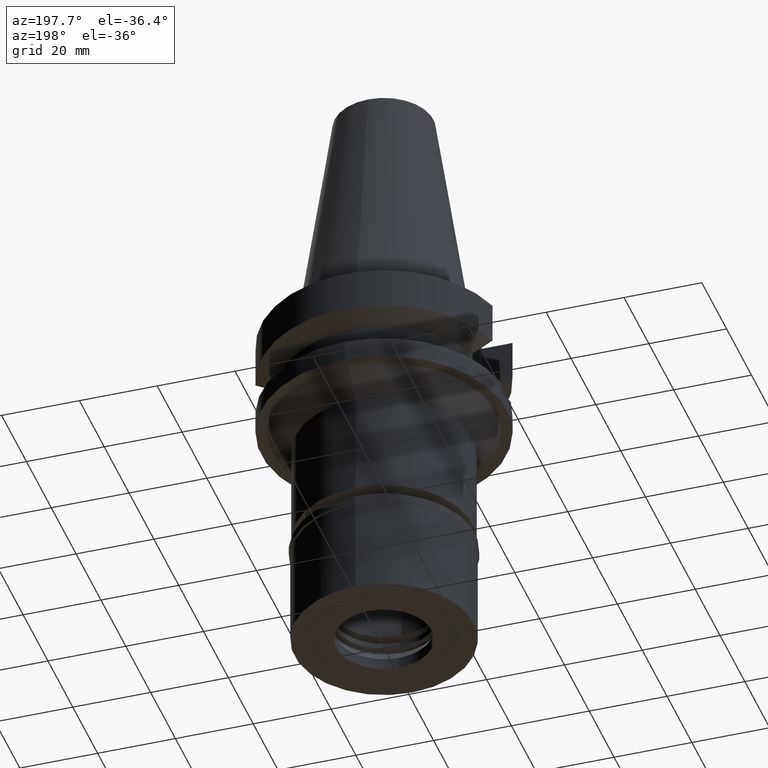
[diagram: clean part render]
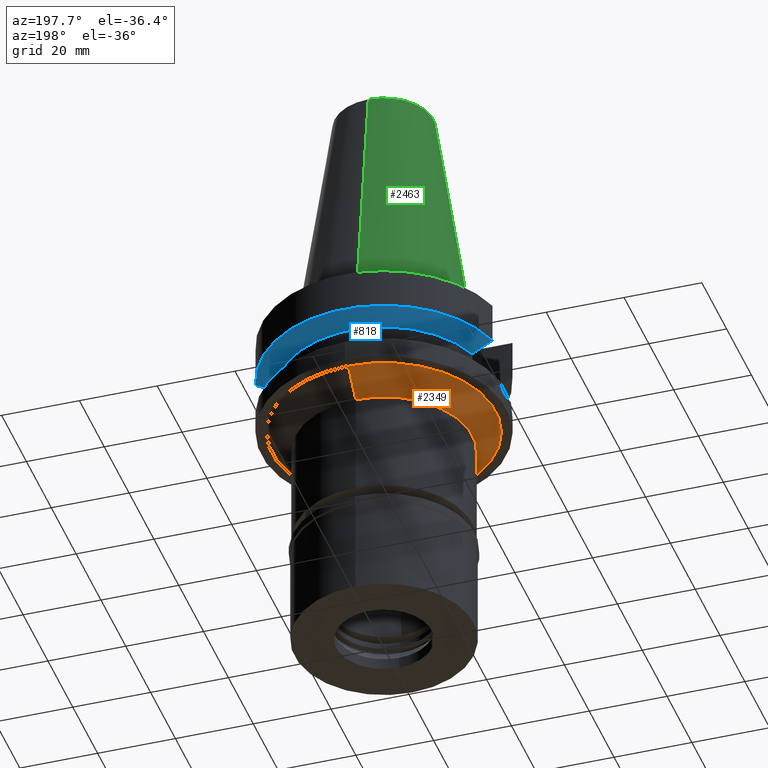
[diagram: same view with three faces highlighted in distinct colors, each labeled with its STEP entity id]
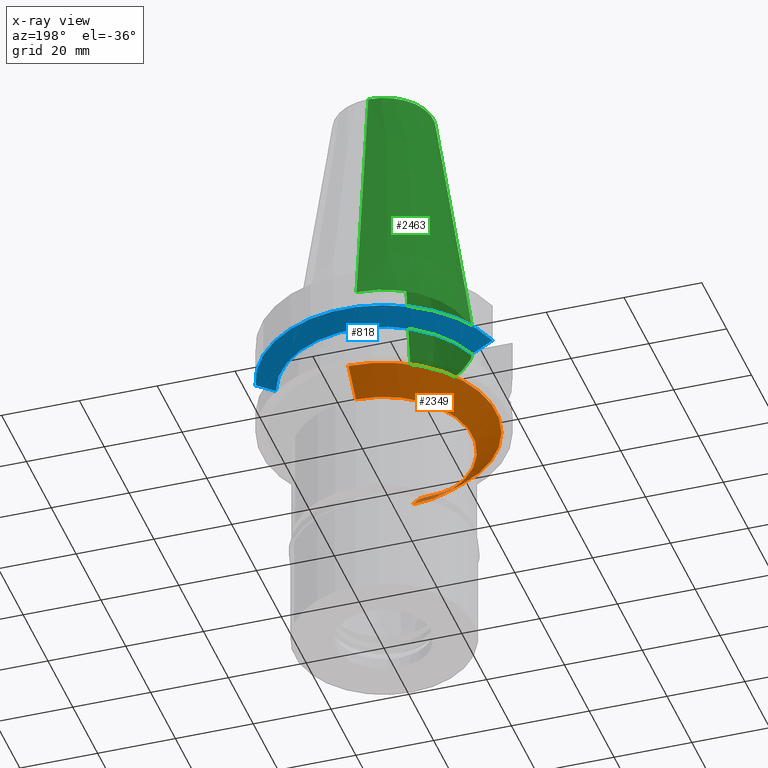
[diagram: x-ray of the same camera — body ghosted, the three highlighted faces saturated]
A machine part, auxiliary view with three faces highlighted in distinct colors.
The next image is the same camera in x-ray (body ghosted, the three faces saturated) — at least one of them is partly hidden behind the body in this view.
Their STEP definitions:

[orange] entity #2349 — the highlighted conical surface has half-angle 45 deg.
#31 = CARTESIAN_POINT ( 'NONE',  ( 0.0000000000000000000, 0.0000000000000000000, -27.00000000000000000 ) ) ;
#56 = EDGE_CURVE ( 'NONE', #2328, #1924, #267, .T. ) ;
#134 = CARTESIAN_POINT ( 'NONE',  ( 0.0000000000000000000, -28.75000000000000000, -27.00000000000000000 ) ) ;
#150 = CARTESIAN_POINT ( 'NONE',  ( 0.0000000000000000000, -22.75000000000000000, -33.00000000000000000 ) ) ;
#153 = CARTESIAN_POINT ( 'NONE',  ( 0.0000000000000000000, 0.0000000000000000000, -33.00000000000000000 ) ) ;
#267 = LINE ( 'NONE', #1890, #1053 ) ;
#272 = CONICAL_SURFACE ( 'NONE', #2014, 25.75000000000000000, 0.7853981633972997312 ) ;
#400 = DIRECTION ( 'NONE',  ( 0.0000000000000000000, -1.000000000000000000, 0.0000000000000000000 ) ) ;
#504 = DIRECTION ( 'NONE',  ( 0.0000000000000000000, -1.000000000000000000, 0.0000000000000000000 ) ) ;
#605 = DIRECTION ( 'NONE',  ( 0.0000000000000000000, 0.0000000000000000000, -1.000000000000000000 ) ) ;
#772 = CIRCLE ( 'NONE', #2503, 28.75000000000000000 ) ;
#788 = DIRECTION ( 'NONE',  ( 0.0000000000000000000, 0.7071067811865474617, -0.7071067811865474617 ) ) ;
#816 = VERTEX_POINT ( 'NONE', #134 ) ;
#838 = CARTESIAN_POINT ( 'NONE',  ( 0.0000000000000000000, -28.75000000000000000, -27.00000000000000000 ) ) ;
#945 = ORIENTED_EDGE ( 'NONE', *, *, #2611, .T. ) ;
#1042 = DIRECTION ( 'NONE',  ( 0.0000000000000000000, 1.000000000000000000, 0.0000000000000000000 ) ) ;
#1053 = VECTOR ( 'NONE', #2118, 1000.000000000000114 ) ;
#1083 = ORIENTED_EDGE ( 'NONE', *, *, #56, .T. ) ;
#1387 = VERTEX_POINT ( 'NONE', #150 ) ;
#1497 = LINE ( 'NONE', #838, #1809 ) ;
#1643 = DIRECTION ( 'NONE',  ( 0.0000000000000000000, 0.0000000000000000000, -1.000000000000000000 ) ) ;
#1657 = EDGE_CURVE ( 'NONE', #1387, #1924, #1810, .T. ) ;
#1809 = VECTOR ( 'NONE', #788, 1000.000000000000114 ) ;
#1810 = CIRCLE ( 'NONE', #2748, 22.75000000000000000 ) ;
#1842 = CARTESIAN_POINT ( 'NONE',  ( 0.0000000000000000000, 22.75000000000000000, -33.00000000000000000 ) ) ;
#1890 = CARTESIAN_POINT ( 'NONE',  ( 0.0000000000000000000, 28.75000000000000000, -27.00000000000000000 ) ) ;
#1924 = VERTEX_POINT ( 'NONE', #1842 ) ;
#2014 = AXIS2_PLACEMENT_3D ( 'NONE', #2915, #2728, #1042 ) ;
#2118 = DIRECTION ( 'NONE',  ( 0.0000000000000000000, -0.7071067811865474617, -0.7071067811865474617 ) ) ;
#2194 = ORIENTED_EDGE ( 'NONE', *, *, #1657, .F. ) ;
#2216 = FACE_OUTER_BOUND ( 'NONE', #2838, .T. ) ;
#2328 = VERTEX_POINT ( 'NONE', #2712 ) ;
#2349 = ADVANCED_FACE ( 'NONE', ( #2216 ), #272, .T. ) ;
#2503 = AXIS2_PLACEMENT_3D ( 'NONE', #31, #1643, #504 ) ;
#2611 = EDGE_CURVE ( 'NONE', #816, #2328, #772, .T. ) ;
#2659 = ORIENTED_EDGE ( 'NONE', *, *, #2852, .F. ) ;
#2712 = CARTESIAN_POINT ( 'NONE',  ( 0.0000000000000000000, 28.75000000000000000, -27.00000000000000000 ) ) ;
#2728 = DIRECTION ( 'NONE',  ( 0.0000000000000000000, 0.0000000000000000000, 1.000000000000000000 ) ) ;
#2748 = AXIS2_PLACEMENT_3D ( 'NONE', #153, #605, #400 ) ;
#2838 = EDGE_LOOP ( 'NONE', ( #2194, #2659, #945, #1083 ) ) ;
#2852 = EDGE_CURVE ( 'NONE', #816, #1387, #1497, .T. ) ;
#2915 = CARTESIAN_POINT ( 'NONE',  ( 0.0000000000000000000, 0.0000000000000000000, -30.00000000000000000 ) ) ;

[blue] entity #818 — the highlighted conical surface has half-angle 60 deg.
#209 = CONICAL_SURFACE ( 'NONE', #2537, 29.00000000000000000, 1.047197551196400456 ) ;
#238 = EDGE_LOOP ( 'NONE', ( #1396, #845, #1976, #1612 ) ) ;
#316 = B_SPLINE_CURVE_WITH_KNOTS ( 'NONE', 3,
 ( #1210, #749, #2161, #2502 ),
 .UNSPECIFIED., .F., .F.,
 ( 4, 4 ),
 ( 0.0000000000000000000, 1.000000000000000000 ),
 .UNSPECIFIED. ) ;
#319 = CARTESIAN_POINT ( 'NONE',  ( -25.24772216504000255, 8.050001582430001079, -14.45224490744999990 ) ) ;
#381 = CARTESIAN_POINT ( 'NONE',  ( 0.0000000000000000000, 0.0000000000000000000, -13.00888132564000088 ) ) ;
#538 = EDGE_CURVE ( 'NONE', #1133, #2552, #1032, .T. ) ;
#603 = DIRECTION ( 'NONE',  ( 0.0000000000000000000, 1.000000000000000000, 0.0000000000000000000 ) ) ;
#638 = CARTESIAN_POINT ( 'NONE',  ( 30.45402291423999941, 8.049999275703999757, -11.56551217625000127 ) ) ;
#669 = CARTESIAN_POINT ( 'NONE',  ( 0.0000000000000000000, 0.0000000000000000000, -14.45225699861000024 ) ) ;
#749 = CARTESIAN_POINT ( 'NONE',  ( -26.83758137471844663, 8.050003168276337107, -13.57772741330551192 ) ) ;
#818 = ADVANCED_FACE ( 'NONE', ( #2525 ), #209, .T. ) ;
#845 = ORIENTED_EDGE ( 'NONE', *, *, #538, .T. ) ;
#937 = CARTESIAN_POINT ( 'NONE',  ( 0.0000000000000000000, 0.0000000000000000000, -11.56550565266999975 ) ) ;
#1011 = EDGE_CURVE ( 'NONE', #1261, #2552, #1012, .T. ) ;
#1012 = CIRCLE ( 'NONE', #2743, 26.50000000000000711 ) ;
#1018 = CARTESIAN_POINT ( 'NONE',  ( 30.45402291423999941, 8.049999275703999757, -11.56551217625000127 ) ) ;
#1032 = B_SPLINE_CURVE_WITH_KNOTS ( 'NONE', 3,
 ( #1018, #1962, #2906, #1727 ),
 .UNSPECIFIED., .F., .F.,
 ( 4, 4 ),
 ( 0.0000000000000000000, 1.000000000000000000 ),
 .UNSPECIFIED. ) ;
#1063 = EDGE_CURVE ( 'NONE', #1261, #2876, #316, .T. ) ;
#1133 = VERTEX_POINT ( 'NONE', #638 ) ;
#1210 = CARTESIAN_POINT ( 'NONE',  ( -25.24772216504000255, 8.050001582430001079, -14.45224490744999990 ) ) ;
#1220 = DIRECTION ( 'NONE',  ( 0.0000000000000000000, 1.000000000000000000, 0.0000000000000000000 ) ) ;
#1261 = VERTEX_POINT ( 'NONE', #319 ) ;
#1396 = ORIENTED_EDGE ( 'NONE', *, *, #2691, .F. ) ;
#1563 = CIRCLE ( 'NONE', #1869, 31.50000000000000000 ) ;
#1612 = ORIENTED_EDGE ( 'NONE', *, *, #1063, .T. ) ;
#1622 = DIRECTION ( 'NONE',  ( -0.9527442516822307583, 0.3037735849057093818, 0.0000000000000000000 ) ) ;
#1727 = CARTESIAN_POINT ( 'NONE',  ( 25.24772413295000106, 8.049995410332000390, -14.45229206966999946 ) ) ;
#1869 = AXIS2_PLACEMENT_3D ( 'NONE', #937, #2380, #1220 ) ;
#1915 = DIRECTION ( 'NONE',  ( 0.0000000000000000000, 0.0000000000000000000, -1.000000000000000000 ) ) ;
#1962 = CARTESIAN_POINT ( 'NONE',  ( 28.57292323477824425, 8.049998552349265424, -12.61549608707188597 ) ) ;
#1976 = ORIENTED_EDGE ( 'NONE', *, *, #1011, .F. ) ;
#2156 = CARTESIAN_POINT ( 'NONE',  ( 25.24772413295000106, 8.049995410332000390, -14.45229206966999946 ) ) ;
#2161 = CARTESIAN_POINT ( 'NONE',  ( -28.57295861194410236, 8.050008289363164593, -12.61547485923594358 ) ) ;
#2380 = DIRECTION ( 'NONE',  ( 0.0000000000000000000, 0.0000000000000000000, 1.000000000000000000 ) ) ;
#2502 = CARTESIAN_POINT ( 'NONE',  ( -30.45402162653999767, 8.050004147201001103, -11.56546829644999974 ) ) ;
#2525 = FACE_OUTER_BOUND ( 'NONE', #238, .T. ) ;
#2537 = AXIS2_PLACEMENT_3D ( 'NONE', #381, #2750, #603 ) ;
#2552 = VERTEX_POINT ( 'NONE', #2156 ) ;
#2691 = EDGE_CURVE ( 'NONE', #1133, #2876, #1563, .T. ) ;
#2743 = AXIS2_PLACEMENT_3D ( 'NONE', #669, #1915, #1622 ) ;
#2750 = DIRECTION ( 'NONE',  ( 0.0000000000000000000, 0.0000000000000000000, 1.000000000000000000 ) ) ;
#2876 = VERTEX_POINT ( 'NONE', #2923 ) ;
#2906 = CARTESIAN_POINT ( 'NONE',  ( 26.83754610232989535, 8.049990810497222427, -13.57774891467756895 ) ) ;
#2923 = CARTESIAN_POINT ( 'NONE',  ( -30.45402162653999767, 8.050004147201001103, -11.56546829644999974 ) ) ;

[green] entity #2463 — the highlighted conical surface has half-angle 8.297 deg.
#15 = LINE ( 'NONE', #1641, #649 ) ;
#26 = DIRECTION ( 'NONE',  ( 0.0000000000000000000, -1.000000000000000000, 0.0000000000000000000 ) ) ;
#38 = EDGE_CURVE ( 'NONE', #321, #1742, #15, .T. ) ;
#104 = CIRCLE ( 'NONE', #2149, 22.22500000000000142 ) ;
#177 = VERTEX_POINT ( 'NONE', #640 ) ;
#207 = DIRECTION ( 'NONE',  ( 0.0000000000000000000, 0.1443043893539925626, -0.9895333461855498891 ) ) ;
#321 = VERTEX_POINT ( 'NONE', #673 ) ;
#425 = CARTESIAN_POINT ( 'NONE',  ( 0.0000000000000000000, 0.0000000000000000000, 32.70000000000000284 ) ) ;
#439 = FACE_OUTER_BOUND ( 'NONE', #835, .T. ) ;
#594 = VERTEX_POINT ( 'NONE', #1820 ) ;
#620 = CARTESIAN_POINT ( 'NONE',  ( 0.0000000000000000000, 22.22500000000000142, -7.105427357600999334E-14 ) ) ;
#640 = CARTESIAN_POINT ( 'NONE',  ( 0.0000000000000000000, -12.68766899429999917, 65.40000000000000568 ) ) ;
#649 = VECTOR ( 'NONE', #207, 1000.000000000000114 ) ;
#653 = ORIENTED_EDGE ( 'NONE', *, *, #38, .T. ) ;
#673 = CARTESIAN_POINT ( 'NONE',  ( 0.0000000000000000000, 12.68766899429999917, 65.40000000000000568 ) ) ;
#835 = EDGE_LOOP ( 'NONE', ( #2421, #866, #2026, #653 ) ) ;
#866 = ORIENTED_EDGE ( 'NONE', *, *, #1343, .F. ) ;
#1157 = EDGE_CURVE ( 'NONE', #594, #1742, #104, .T. ) ;
#1208 = VECTOR ( 'NONE', #2716, 1000.000000000000114 ) ;
#1343 = EDGE_CURVE ( 'NONE', #177, #594, #1349, .T. ) ;
#1349 = LINE ( 'NONE', #2296, #1208 ) ;
#1517 = EDGE_CURVE ( 'NONE', #177, #321, #1614, .T. ) ;
#1614 = CIRCLE ( 'NONE', #2894, 12.68766899429999917 ) ;
#1641 = CARTESIAN_POINT ( 'NONE',  ( 0.0000000000000000000, 12.68766899429999917, 65.40000000000000568 ) ) ;
#1742 = VERTEX_POINT ( 'NONE', #620 ) ;
#1820 = CARTESIAN_POINT ( 'NONE',  ( 0.0000000000000000000, -22.22500000000000142, -7.105427357600999334E-14 ) ) ;
#1919 = AXIS2_PLACEMENT_3D ( 'NONE', #425, #2540, #2075 ) ;
#2023 = CARTESIAN_POINT ( 'NONE',  ( 0.0000000000000000000, 0.0000000000000000000, -2.273736754432000254E-13 ) ) ;
#2026 = ORIENTED_EDGE ( 'NONE', *, *, #1517, .T. ) ;
#2068 = DIRECTION ( 'NONE',  ( 0.0000000000000000000, -1.000000000000000000, 0.0000000000000000000 ) ) ;
#2075 = DIRECTION ( 'NONE',  ( 0.0000000000000000000, -1.000000000000000000, 0.0000000000000000000 ) ) ;
#2149 = AXIS2_PLACEMENT_3D ( 'NONE', #2023, #2953, #2068 ) ;
#2153 = CARTESIAN_POINT ( 'NONE',  ( 0.0000000000000000000, 0.0000000000000000000, 65.40000000000000568 ) ) ;
#2296 = CARTESIAN_POINT ( 'NONE',  ( 0.0000000000000000000, -12.68766899429999917, 65.40000000000000568 ) ) ;
#2421 = ORIENTED_EDGE ( 'NONE', *, *, #1157, .F. ) ;
#2463 = ADVANCED_FACE ( 'NONE', ( #439 ), #2601, .T. ) ;
#2540 = DIRECTION ( 'NONE',  ( 0.0000000000000000000, 0.0000000000000000000, -1.000000000000000000 ) ) ;
#2601 = CONICAL_SURFACE ( 'NONE', #1919, 17.45633449714999941, 0.1448099680379422438 ) ;
#2716 = DIRECTION ( 'NONE',  ( 0.0000000000000000000, -0.1443043893539925626, -0.9895333461855498891 ) ) ;
#2867 = DIRECTION ( 'NONE',  ( 0.0000000000000000000, 0.0000000000000000000, -1.000000000000000000 ) ) ;
#2894 = AXIS2_PLACEMENT_3D ( 'NONE', #2153, #2867, #26 ) ;
#2953 = DIRECTION ( 'NONE',  ( 0.0000000000000000000, 0.0000000000000000000, -1.000000000000000000 ) ) ;